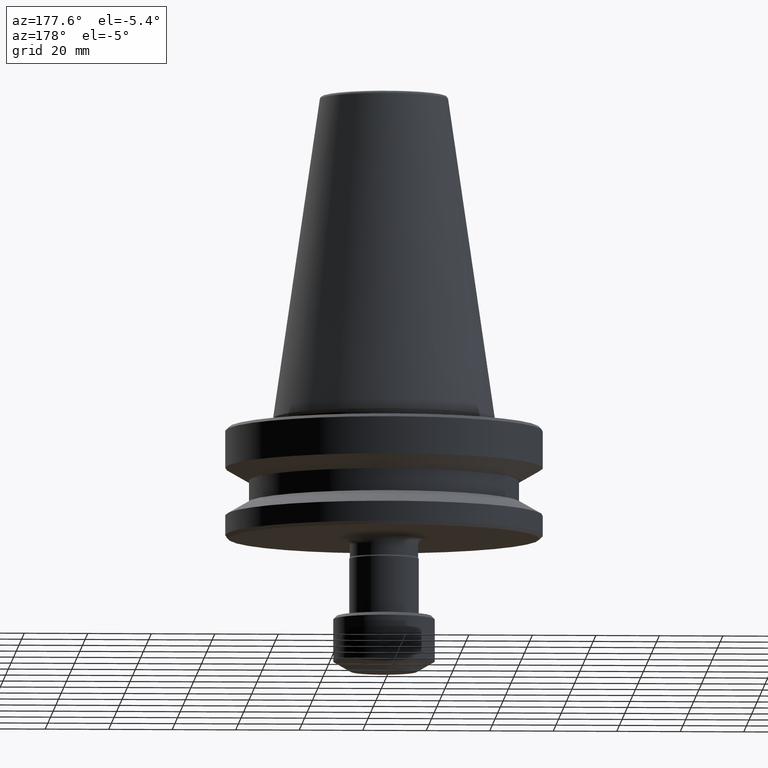
[diagram: clean part render]
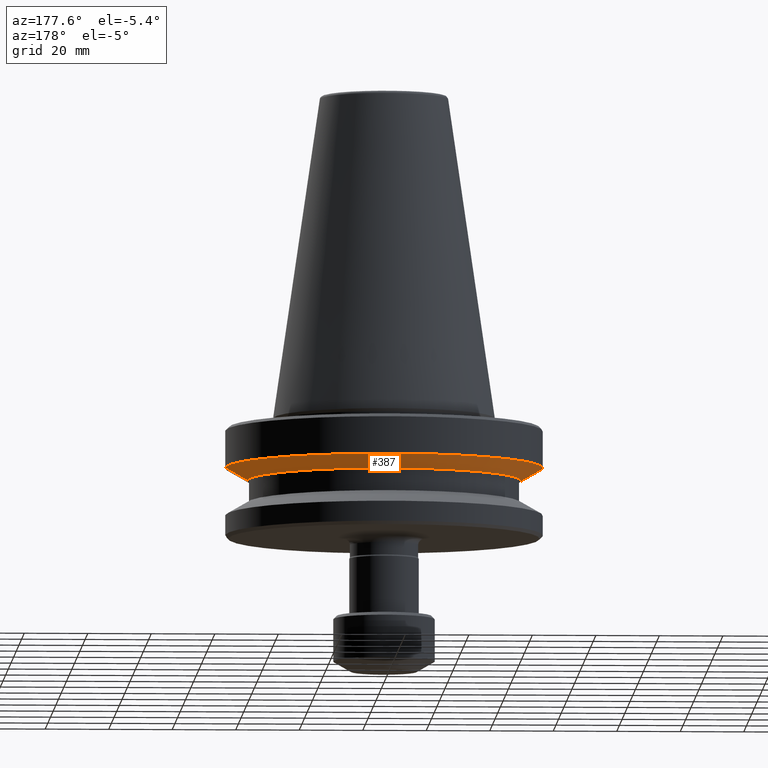
[diagram: same view with one face highlighted and labeled with its STEP entity id]
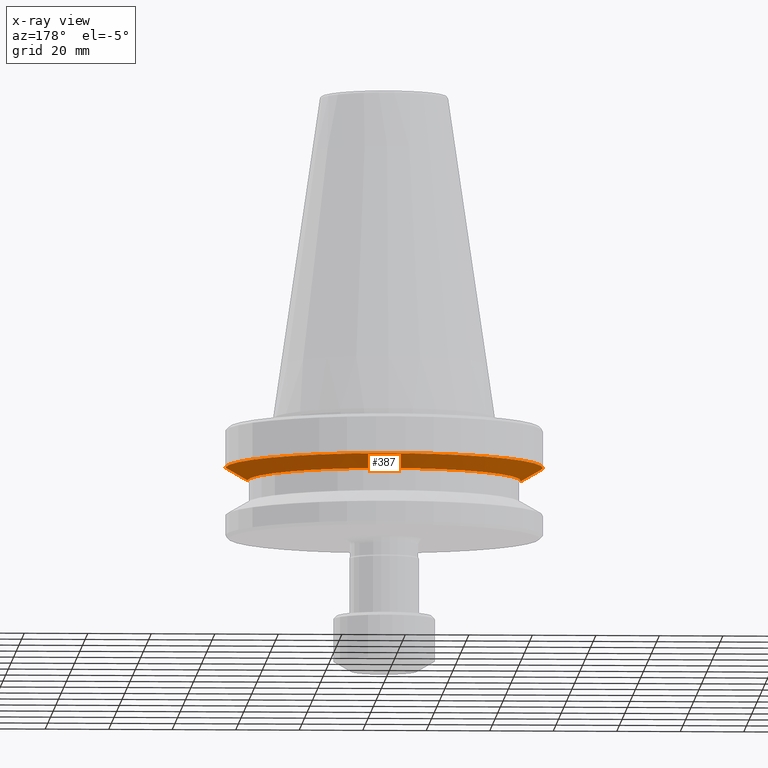
[diagram: x-ray of the same camera — body ghosted, the highlighted face saturated]
A machine part, auxiliary view. The second image highlights one B-rep face of the part: STEP entity #387.
The next image is the same camera in x-ray: the body ghosted, the highlighted face saturated — about 0% of this face is hidden behind the body in this view.
In plain terms, the highlighted conical surface has half-angle 60 deg.
Its self-contained STEP definition (entity closure, byte-faithful):
#31 = DIRECTION ( 'NONE',  ( 1.000000000000000000, 0.0000000000000000000, 0.0000000000000000000 ) ) ;
#71 = VERTEX_POINT ( 'NONE', #97 ) ;
#74 = CARTESIAN_POINT ( 'NONE',  ( 0.0000000000000000000, 0.0000000000000000000, -15.70022000322653200 ) ) ;
#97 = CARTESIAN_POINT ( 'NONE',  ( 50.00000000000027000, 0.0000000000000000000, -15.70022000322653200 ) ) ;
#139 = CARTESIAN_POINT ( 'NONE',  ( -50.00000000000027000, 6.123233995736798400E-015, -15.70022000322653200 ) ) ;
#167 = LINE ( 'NONE', #1096, #207 ) ;
#186 = EDGE_CURVE ( 'NONE', #592, #769, #1101, .T. ) ;
#207 = VECTOR ( 'NONE', #746, 1000.000000000000000 ) ;
#256 = CARTESIAN_POINT ( 'NONE',  ( 0.0000000000000000000, 0.0000000000000000000, -15.70022000322653200 ) ) ;
#269 = CARTESIAN_POINT ( 'NONE',  ( -50.00000000000027000, 6.123233995736798400E-015, -15.70022000322653200 ) ) ;
#284 = VERTEX_POINT ( 'NONE', #1078 ) ;
#288 = EDGE_LOOP ( 'NONE', ( #654, #578, #338, #1040 ) ) ;
#297 = CARTESIAN_POINT ( 'NONE',  ( -43.07217782649197300, 5.699027233244349400E-015, -19.69999999999939900 ) ) ;
#338 = ORIENTED_EDGE ( 'NONE', *, *, #1087, .F. ) ;
#387 = ADVANCED_FACE ( 'NONE', ( #738 ), #1134, .T. ) ;
#428 = AXIS2_PLACEMENT_3D ( 'NONE', #256, #983, #471 ) ;
#448 = EDGE_CURVE ( 'NONE', #284, #592, #1042, .T. ) ;
#463 = DIRECTION ( 'NONE',  ( -0.0000000000000000000, -0.0000000000000000000, 1.000000000000000000 ) ) ;
#471 = DIRECTION ( 'NONE',  ( 1.000000000000000000, 0.0000000000000000000, 0.0000000000000000000 ) ) ;
#498 = DIRECTION ( 'NONE',  ( 1.000000000000000000, 0.0000000000000000000, 0.0000000000000000000 ) ) ;
#572 = CARTESIAN_POINT ( 'NONE',  ( 0.0000000000000000000, 0.0000000000000000000, -19.69999999999939900 ) ) ;
#578 = ORIENTED_EDGE ( 'NONE', *, *, #186, .T. ) ;
#592 = VERTEX_POINT ( 'NONE', #297 ) ;
#654 = ORIENTED_EDGE ( 'NONE', *, *, #448, .T. ) ;
#683 = AXIS2_PLACEMENT_3D ( 'NONE', #74, #463, #498 ) ;
#686 = EDGE_CURVE ( 'NONE', #284, #71, #167, .T. ) ;
#738 = FACE_OUTER_BOUND ( 'NONE', #288, .T. ) ;
#746 = DIRECTION ( 'NONE',  ( 0.8660254037844388200, 0.0000000000000000000, 0.4999999999999997200 ) ) ;
#759 = DIRECTION ( 'NONE',  ( -0.0000000000000000000, -0.0000000000000000000, 1.000000000000000000 ) ) ;
#769 = VERTEX_POINT ( 'NONE', #269 ) ;
#824 = CIRCLE ( 'NONE', #428, 50.00000000000027000 ) ;
#974 = AXIS2_PLACEMENT_3D ( 'NONE', #572, #759, #31 ) ;
#983 = DIRECTION ( 'NONE',  ( -0.0000000000000000000, -0.0000000000000000000, 1.000000000000000000 ) ) ;
#1040 = ORIENTED_EDGE ( 'NONE', *, *, #686, .F. ) ;
#1042 = CIRCLE ( 'NONE', #974, 43.07217782649197300 ) ;
#1078 = CARTESIAN_POINT ( 'NONE',  ( 43.07217782649197300, 0.0000000000000000000, -19.69999999999939900 ) ) ;
#1087 = EDGE_CURVE ( 'NONE', #71, #769, #824, .T. ) ;
#1096 = CARTESIAN_POINT ( 'NONE',  ( 50.00000000000027000, 0.0000000000000000000, -15.70022000322653200 ) ) ;
#1101 = LINE ( 'NONE', #139, #1191 ) ;
#1134 = CONICAL_SURFACE ( 'NONE', #683, 50.00000000000027000, 1.047197551196598100 ) ;
#1191 = VECTOR ( 'NONE', #1208, 1000.000000000000000 ) ;
#1208 = DIRECTION ( 'NONE',  ( -0.8660254037844388200, 1.060575238724907200E-016, 0.4999999999999997200 ) ) ;